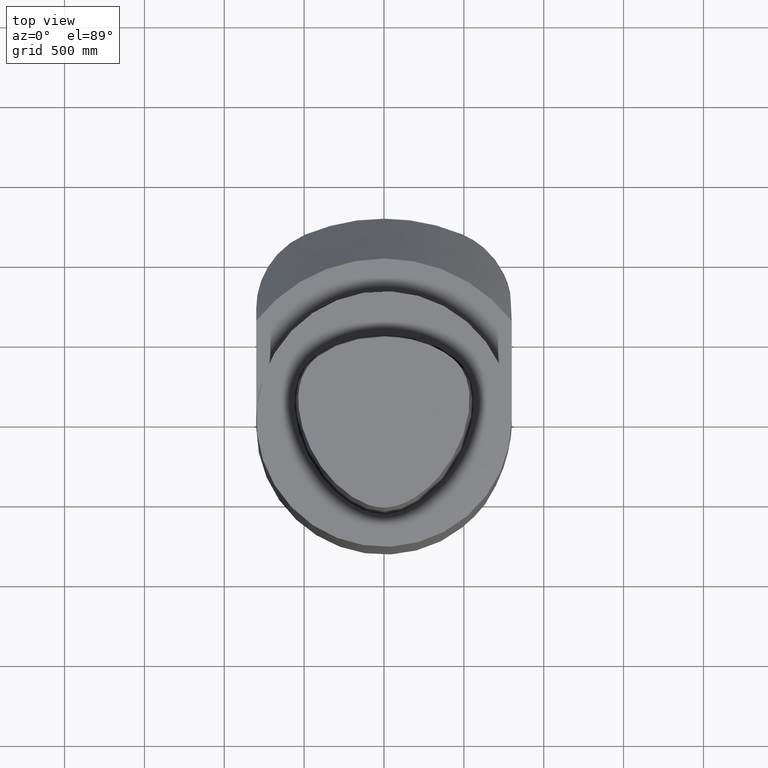
[diagram: clean part render]
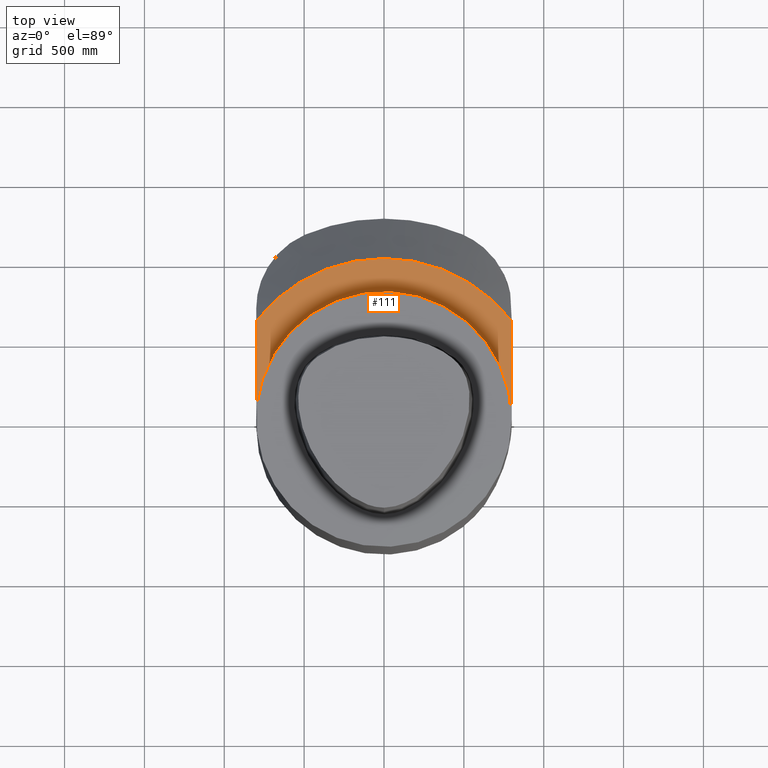
[diagram: same view with one face highlighted and labeled with its STEP entity id]
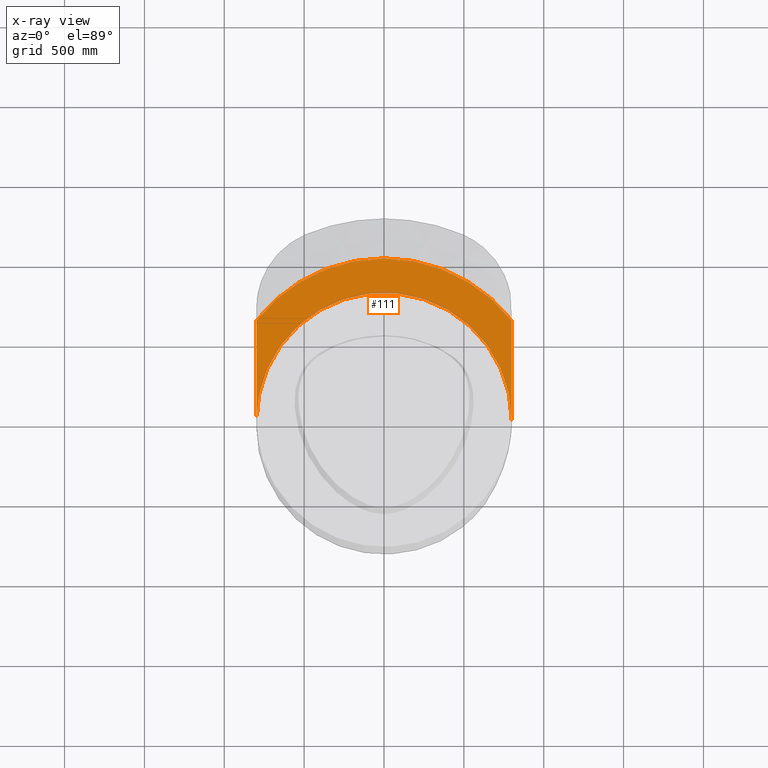
[diagram: x-ray of the same camera — body ghosted, the highlighted face saturated]
A machine part, top view. The second image highlights one B-rep face of the part: STEP entity #111.
The next image is the same camera in x-ray: the body ghosted, the highlighted face saturated — about 4% of this face is hidden behind the body in this view.
In plain terms, the highlighted planar face has unit normal (-0, 0, 1).
Its self-contained STEP definition (entity closure, byte-faithful):
#106=EDGE_CURVE('Unnamed[1]',#288,#289,#290,.T.);
#111=ADVANCED_FACE('Unnamed[1]',(#297),#298,.T.);
#186=EDGE_CURVE('Unnamed[1]',#316,#288,#401,.T.);
#188=EDGE_CURVE('Unnamed[1]',#403,#289,#404,.T.);
#231=EDGE_CURVE('Unnamed[1]',#403,#316,#455,.T.);
#288=VERTEX_POINT('',#514);
#289=VERTEX_POINT('',#515);
#290=LINE('',#516,#517);
#297=FACE_OUTER_BOUND('',#541,.T.);
#298=PLANE('',#542);
#316=VERTEX_POINT('',#566);
#401=CIRCLE('',#764,31.5);
#403=VERTEX_POINT('',#767);
#404=CIRCLE('',#768,40.000000000002);
#455=LINE('',#1000,#1001);
#514=CARTESIAN_POINT('',(31.5,-7.25603228494807E-015,-24.0));
#515=CARTESIAN_POINT('',(31.4999999999998,24.6525860712455,-24.0));
#516=CARTESIAN_POINT('',(31.4999999999998,6.92662721561405,-24.0));
#517=VECTOR('',#1071,1.0);
#541=EDGE_LOOP('',(#1073,#1074,#1075,#1076));
#542=AXIS2_PLACEMENT_3D('',#1077,#1078,#1079);
#566=CARTESIAN_POINT('',(-31.5,3.08097706887413E-014,-24.0));
#764=AXIS2_PLACEMENT_3D('',#1190,#1191,#1192);
#767=CARTESIAN_POINT('',(-31.5000000000001,24.6525860712452,-24.0));
#768=AXIS2_PLACEMENT_3D('',#1193,#1194,#1195);
#1000=CARTESIAN_POINT('',(-31.5,6.92752358954311,-24.0));
#1001=VECTOR('',#1259,1.0);
#1071=DIRECTION('',(3.11923701062335E-016,1.0,-6.12323399573677E-017));
#1073=ORIENTED_EDGE('',*,*,#106,.T.);
#1074=ORIENTED_EDGE('',*,*,#188,.F.);
#1075=ORIENTED_EDGE('',*,*,#231,.T.);
#1076=ORIENTED_EDGE('',*,*,#186,.T.);
#1077=CARTESIAN_POINT('',(35.750000000001,-8.03674461940469E-015,-24.0));
#1078=DIRECTION('',(-1.22464679914735E-016,6.12323399573677E-017,1.0));
#1079=DIRECTION('',(-1.0,1.83697019872103E-016,-1.22464679914735E-016));
#1190=CARTESIAN_POINT('',(2.93915231795365E-015,-1.46957615897682E-015,-24.0));
#1191=DIRECTION('',(1.22464679914735E-016,-6.12323399573677E-017,-1.0));
#1192=DIRECTION('',(1.0,-1.83697019872103E-016,1.22464679914735E-016));
#1193=CARTESIAN_POINT('',(2.93915231795365E-015,-1.46957615897682E-015,-24.0));
#1194=DIRECTION('',(1.22464679914735E-016,-6.12323399573677E-017,-1.0));
#1195=DIRECTION('',(1.0,-1.83697019872103E-016,1.22464679914735E-016));
#1259=DIRECTION('',(3.91902584538168E-015,-1.0,6.12323399573682E-017));